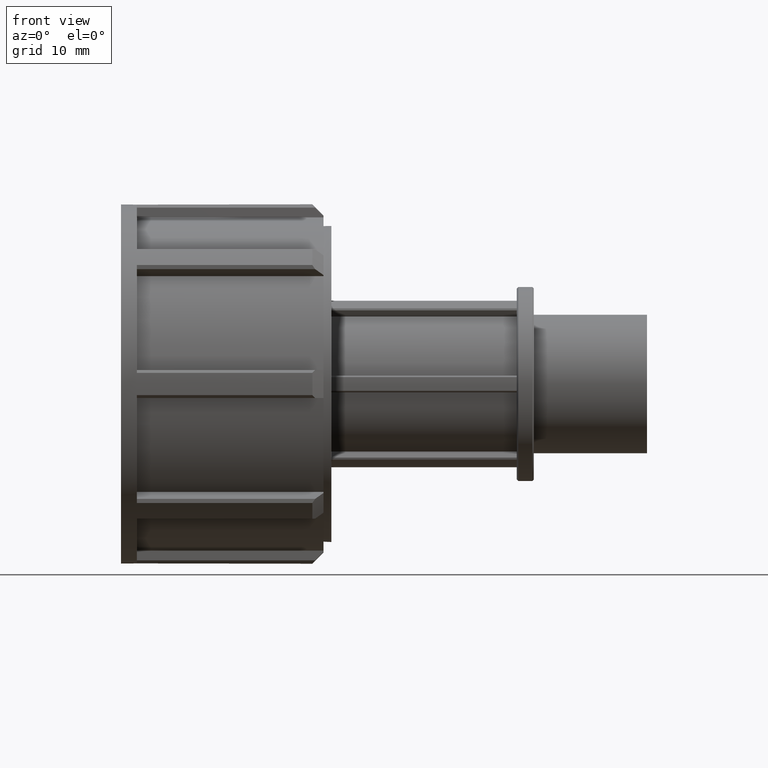
[diagram: clean part render]
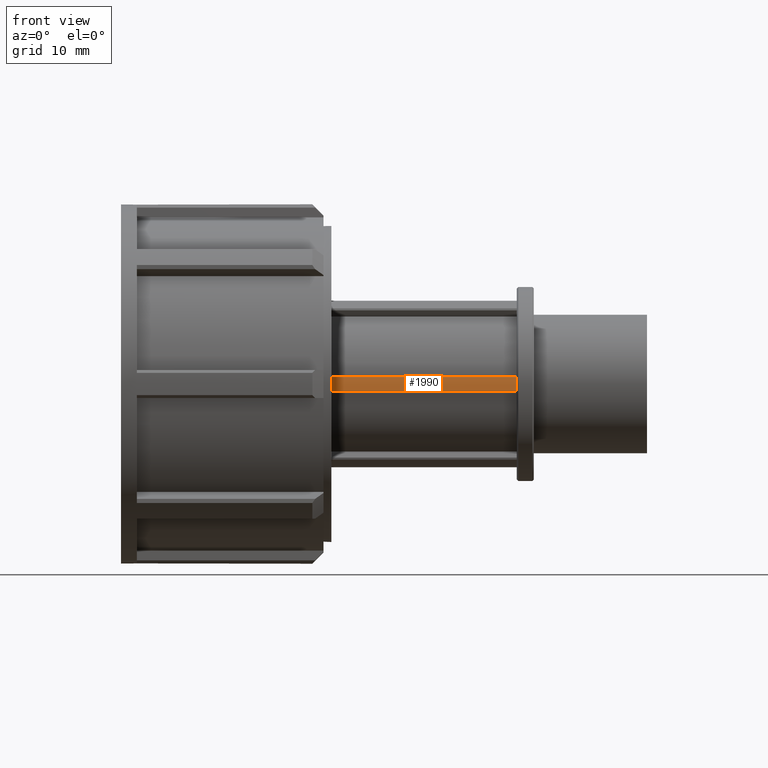
[diagram: same view with one face highlighted and labeled with its STEP entity id]
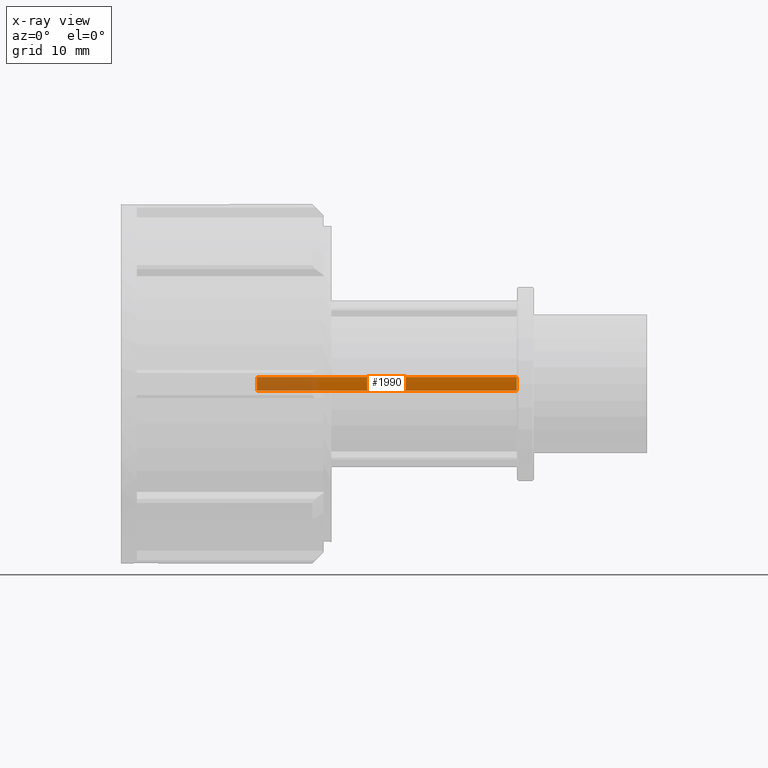
[diagram: x-ray of the same camera — body ghosted, the highlighted face saturated]
A machine part, front view. The second image highlights one B-rep face of the part: STEP entity #1990.
The next image is the same camera in x-ray: the body ghosted, the highlighted face saturated — about 23% of this face is hidden behind the body in this view.
In plain terms, the highlighted cylindrical surface (partial cylindrical patch) has radius 13.75 mm, axis along (-1, 0, 0).
Its self-contained STEP definition (entity closure, byte-faithful):
#85=CIRCLE('',#2112,13.75);
#86=CIRCLE('',#2113,13.75);
#168=CYLINDRICAL_SURFACE('',#2111,13.75);
#207=FACE_OUTER_BOUND('',#322,.T.);
#322=EDGE_LOOP('',(#1355,#1356,#1357,#1358));
#474=LINE('',#2941,#654);
#479=LINE('',#2953,#659);
#654=VECTOR('',#2349,39.05);
#659=VECTOR('',#2358,39.05);
#829=VERTEX_POINT('',#2934);
#832=VERTEX_POINT('',#2939);
#836=VERTEX_POINT('',#2950);
#837=VERTEX_POINT('',#2952);
#1043=EDGE_CURVE('',#832,#829,#474,.T.);
#1048=EDGE_CURVE('',#836,#837,#479,.T.);
#1051=EDGE_CURVE('',#837,#832,#85,.T.);
#1052=EDGE_CURVE('',#829,#836,#86,.T.);
#1355=ORIENTED_EDGE('',*,*,#1043,.F.);
#1356=ORIENTED_EDGE('',*,*,#1051,.F.);
#1357=ORIENTED_EDGE('',*,*,#1048,.F.);
#1358=ORIENTED_EDGE('',*,*,#1052,.F.);
#1990=ADVANCED_FACE('',(#207),#168,.T.);
#2111=AXIS2_PLACEMENT_3D('',#2957,#2361,#2362);
#2112=AXIS2_PLACEMENT_3D('',#2958,#2363,#2364);
#2113=AXIS2_PLACEMENT_3D('',#2959,#2365,#2366);
#2349=DIRECTION('',(1.,0.,0.));
#2358=DIRECTION('',(-1.,0.,0.));
#2361=DIRECTION('center_axis',(-1.,0.,0.));
#2362=DIRECTION('ref_axis',(0.,-1.61486985400023E-16,-1.));
#2363=DIRECTION('center_axis',(-1.,0.,0.));
#2364=DIRECTION('ref_axis',(0.,-1.61486985400023E-16,-1.));
#2365=DIRECTION('center_axis',(1.,0.,0.));
#2366=DIRECTION('ref_axis',(0.,-1.61486985400023E-16,-1.));
#2934=CARTESIAN_POINT('',(59.45,-13.7105232254743,1.04117860318468));
#2939=CARTESIAN_POINT('',(20.4,-13.7105232254743,1.04117860318468));
#2941=CARTESIAN_POINT('',(59.45,-13.7105232254743,1.04117860318468));
#2950=CARTESIAN_POINT('',(59.45,-13.7105232254743,-1.04117860318468));
#2952=CARTESIAN_POINT('',(20.4,-13.7105232254743,-1.04117860318468));
#2953=CARTESIAN_POINT('',(59.45,-13.7105232254743,-1.04117860318468));
#2957=CARTESIAN_POINT('Origin',(59.45,0.,0.));
#2958=CARTESIAN_POINT('Origin',(20.4,0.,0.));
#2959=CARTESIAN_POINT('Origin',(59.45,0.,0.));